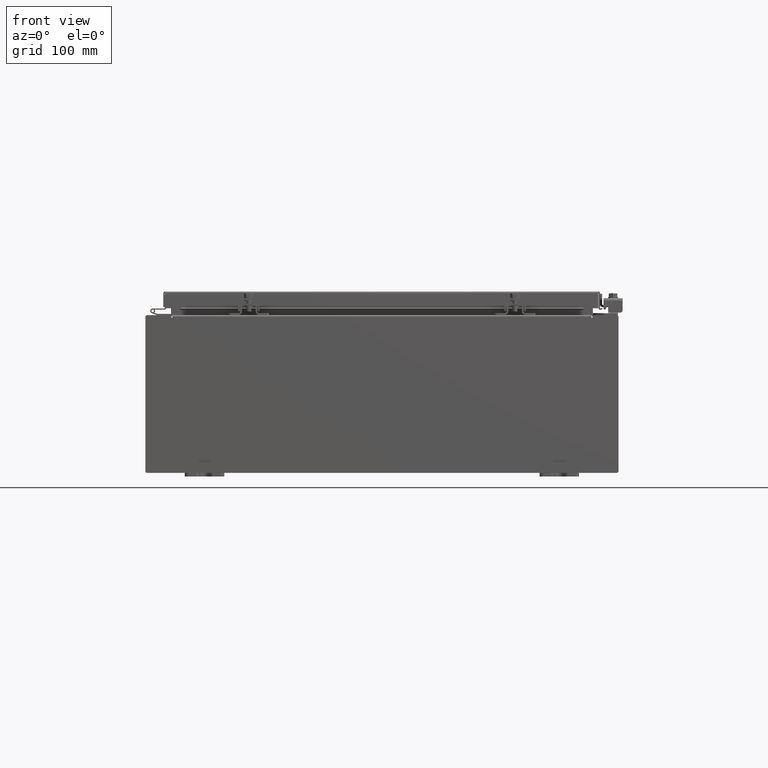
[diagram: clean part render]
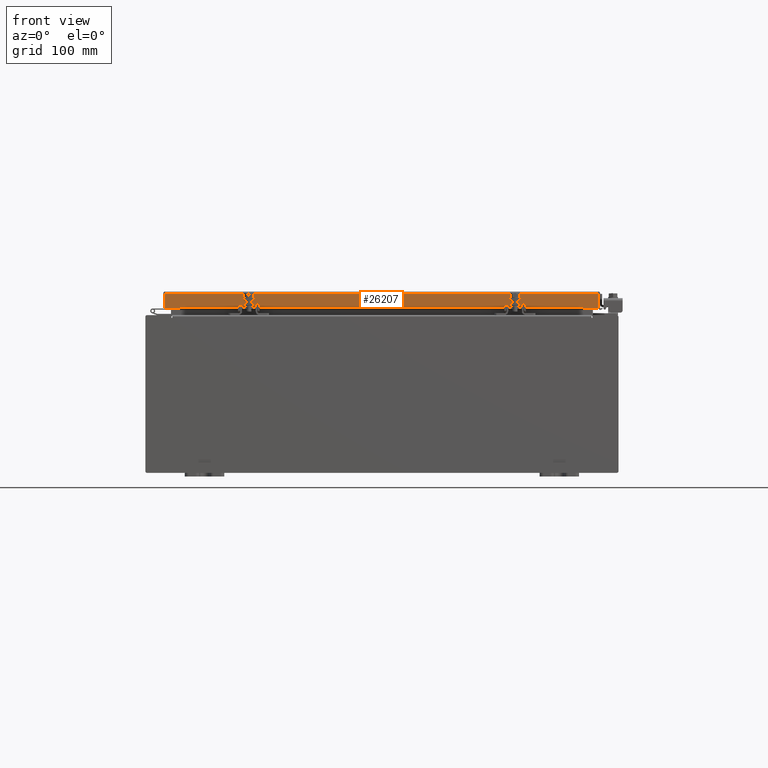
[diagram: same view with one face highlighted and labeled with its STEP entity id]
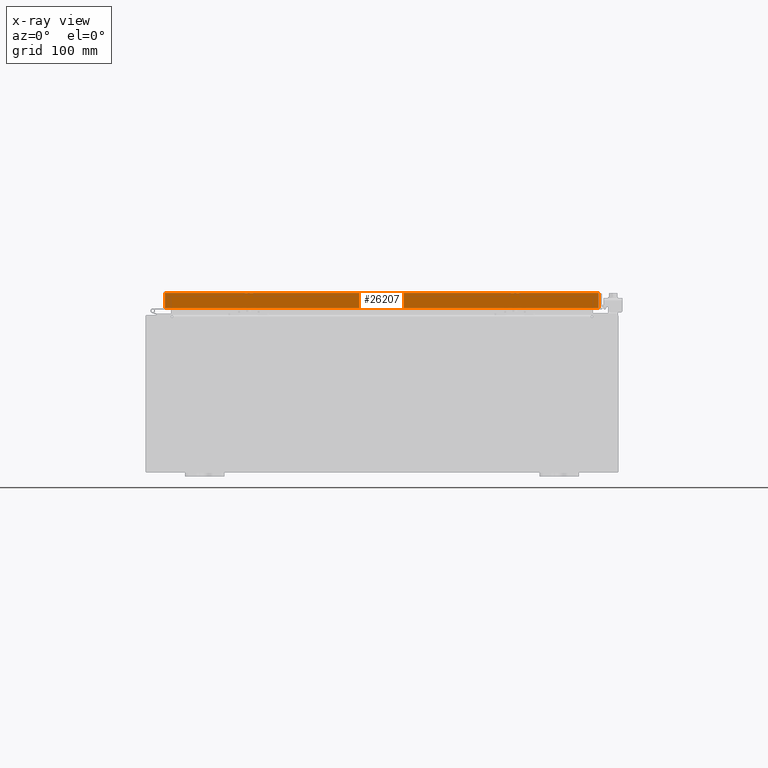
[diagram: x-ray of the same camera — body ghosted, the highlighted face saturated]
A machine part, front view. The second image highlights one B-rep face of the part: STEP entity #26207.
The next image is the same camera in x-ray: the body ghosted, the highlighted face saturated — about 0% of this face is hidden behind the body in this view.
In plain terms, the highlighted planar face has unit normal (-0, 1, -0).
Its self-contained STEP definition (entity closure, byte-faithful):
#356 = DIRECTION ( 'NONE',  ( 0.0000000000000000000, 2.818880942772360500E-015, 1.000000000000000000 ) ) ;
#512 = CARTESIAN_POINT ( 'NONE',  ( 11.07799999999999600, -11.09400000000000300, -0.8499999999999999800 ) ) ;
#564 = LINE ( 'NONE', #4590, #13133 ) ;
#1021 = EDGE_CURVE ( 'NONE', #24333, #5362, #14225, .T. ) ;
#1129 = CARTESIAN_POINT ( 'NONE',  ( 10.23915786437626200, -11.09400000000000100, -0.8500000000000020900 ) ) ;
#1330 = VECTOR ( 'NONE', #6211, 39.37007874015748100 ) ;
#2273 = VERTEX_POINT ( 'NONE', #18097 ) ;
#2662 = CARTESIAN_POINT ( 'NONE',  ( 11.07799999999999600, -11.09400000000000300, -0.8499999999999999800 ) ) ;
#3335 = CARTESIAN_POINT ( 'NONE',  ( 10.98915786437626400, -11.09400000000000100, -0.08769999999999918100 ) ) ;
#3916 = EDGE_CURVE ( 'NONE', #10409, #19080, #28187, .T. ) ;
#4140 = CARTESIAN_POINT ( 'NONE',  ( -10.98915786437627200, -11.09400000000000300, -0.8499999999999966500 ) ) ;
#4590 = CARTESIAN_POINT ( 'NONE',  ( 10.98915786437626400, -11.09400000000000100, -0.07470000000000015500 ) ) ;
#4921 = DIRECTION ( 'NONE',  ( -0.0000000000000000000, -2.818880942772360500E-015, -1.000000000000000000 ) ) ;
#5362 = VERTEX_POINT ( 'NONE', #3335 ) ;
#5488 = DIRECTION ( 'NONE',  ( 1.000000000000000000, 6.951393977153911800E-032, -9.864047639156036200E-017 ) ) ;
#5733 = ORIENTED_EDGE ( 'NONE', *, *, #1021, .F. ) ;
#6211 = DIRECTION ( 'NONE',  ( -1.000000000000000000, 0.0000000000000000000, 0.0000000000000000000 ) ) ;
#8075 = LINE ( 'NONE', #1129, #1330 ) ;
#8974 = ORIENTED_EDGE ( 'NONE', *, *, #12315, .F. ) ;
#9785 = VECTOR ( 'NONE', #22759, 39.37007874015748100 ) ;
#10394 = ORIENTED_EDGE ( 'NONE', *, *, #3916, .F. ) ;
#10409 = VERTEX_POINT ( 'NONE', #14204 ) ;
#12315 = EDGE_CURVE ( 'NONE', #5362, #20340, #564, .T. ) ;
#13133 = VECTOR ( 'NONE', #4921, 39.37007874015748100 ) ;
#13813 = LINE ( 'NONE', #512, #18906 ) ;
#14204 = CARTESIAN_POINT ( 'NONE',  ( -10.23915786437627100, -11.09400000000000100, -0.8500000000000020900 ) ) ;
#14224 = LINE ( 'NONE', #22045, #19316 ) ;
#14225 = LINE ( 'NONE', #24761, #20919 ) ;
#15294 = CARTESIAN_POINT ( 'NONE',  ( 0.0000000000000000000, -11.09400000000000100, 3.168943672650545400E-014 ) ) ;
#15402 = DIRECTION ( 'NONE',  ( -3.475696988576954900E-031, 1.000000000000000000, -2.818880942772360500E-015 ) ) ;
#15546 = DIRECTION ( 'NONE',  ( -1.000000000000000000, 4.379057701015053300E-047, 1.233005954894504400E-016 ) ) ;
#16963 = DIRECTION ( 'NONE',  ( 0.0000000000000000000, -2.818880942772360500E-015, -1.000000000000000000 ) ) ;
#17647 = EDGE_CURVE ( 'NONE', #2273, #10409, #8075, .T. ) ;
#17687 = ORIENTED_EDGE ( 'NONE', *, *, #17647, .F. ) ;
#18097 = CARTESIAN_POINT ( 'NONE',  ( 10.23915786437625800, -11.09400000000000100, -0.8500000000000020900 ) ) ;
#18470 = EDGE_CURVE ( 'NONE', #24333, #19080, #14224, .T. ) ;
#18741 = EDGE_CURVE ( 'NONE', #20340, #2273, #13813, .T. ) ;
#18906 = VECTOR ( 'NONE', #15546, 39.37007874015748100 ) ;
#19080 = VERTEX_POINT ( 'NONE', #4140 ) ;
#19316 = VECTOR ( 'NONE', #16963, 39.37007874015748100 ) ;
#20340 = VERTEX_POINT ( 'NONE', #32115 ) ;
#20401 = ORIENTED_EDGE ( 'NONE', *, *, #18470, .T. ) ;
#20919 = VECTOR ( 'NONE', #5488, 39.37007874015748100 ) ;
#22045 = CARTESIAN_POINT ( 'NONE',  ( -10.98915786437626700, -11.09400000000000100, 3.168943672650545400E-014 ) ) ;
#22759 = DIRECTION ( 'NONE',  ( -1.000000000000000000, 4.379057701015053300E-047, 1.233005954894504400E-016 ) ) ;
#23523 = EDGE_LOOP ( 'NONE', ( #5733, #20401, #10394, #17687, #24953, #8974 ) ) ;
#24324 = FACE_OUTER_BOUND ( 'NONE', #23523, .T. ) ;
#24333 = VERTEX_POINT ( 'NONE', #32007 ) ;
#24761 = CARTESIAN_POINT ( 'NONE',  ( 11.07799999999999600, -11.09400000000000100, -0.08770000000000026400 ) ) ;
#24953 = ORIENTED_EDGE ( 'NONE', *, *, #18741, .F. ) ;
#25407 = PLANE ( 'NONE',  #32288 ) ;
#26207 = ADVANCED_FACE ( 'NONE', ( #24324 ), #25407, .F. ) ;
#28187 = LINE ( 'NONE', #2662, #9785 ) ;
#32007 = CARTESIAN_POINT ( 'NONE',  ( -10.98915786437627200, -11.09400000000000100, -0.08769999999999808500 ) ) ;
#32115 = CARTESIAN_POINT ( 'NONE',  ( 10.98915786437626400, -11.09400000000000300, -0.8499999999999999800 ) ) ;
#32288 = AXIS2_PLACEMENT_3D ( 'NONE', #15294, #15402, #356 ) ;